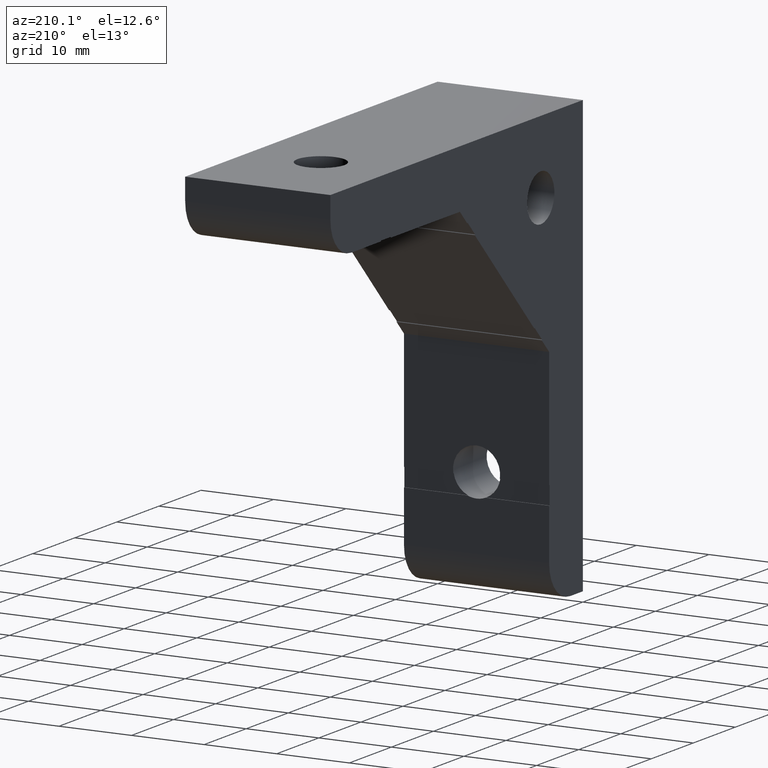
[diagram: clean part render]
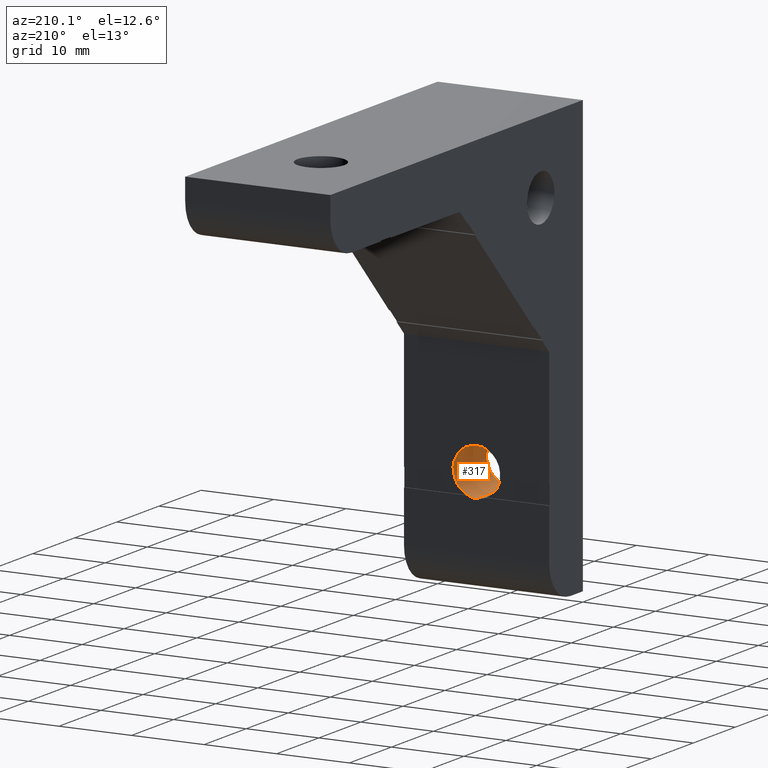
[diagram: same view with one face highlighted and labeled with its STEP entity id]
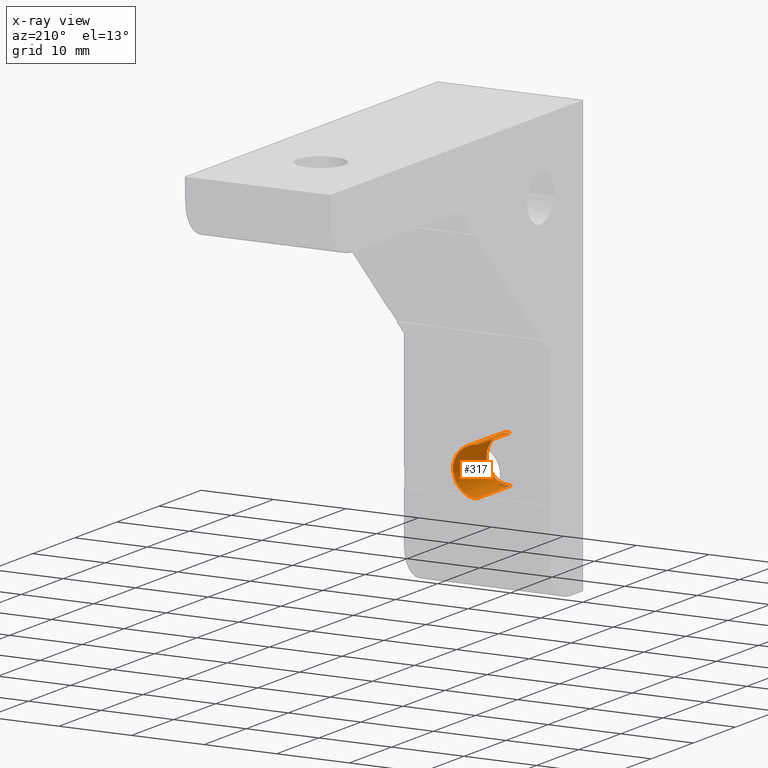
[diagram: x-ray of the same camera — body ghosted, the highlighted face saturated]
A machine part, auxiliary view. The second image highlights one B-rep face of the part: STEP entity #317.
The next image is the same camera in x-ray: the body ghosted, the highlighted face saturated — about 4% of this face is hidden behind the body in this view.
In plain terms, the highlighted cylindrical surface (edge-blend (fillet) strip) has radius 3.25 mm, axis along (-0, 1, 0).
Its self-contained STEP definition (entity closure, byte-faithful):
#2 = EDGE_CURVE ( 'NONE', #909, #1257, #820, .T. ) ;
#3 = EDGE_CURVE ( 'NONE', #907, #911, #822, .T. ) ;
#149 = CARTESIAN_POINT ( 'NONE',  ( 10.00000000000000000, 8.000000000000000000, -48.24999999999999300 ) ) ;
#155 = CARTESIAN_POINT ( 'NONE',  ( 10.00000000000000000, 0.0000000000000000000, -48.24999999999999300 ) ) ;
#167 = CARTESIAN_POINT ( 'NONE',  ( 10.00000000000000000, 0.0000000000000000000, -41.75000000000000000 ) ) ;
#169 = CARTESIAN_POINT ( 'NONE',  ( 11.24999999983503900, 7.899999999999999500, -48.00000000006872400 ) ) ;
#171 = CARTESIAN_POINT ( 'NONE',  ( 10.00000000000000000, 8.000000000000000000, -41.75000000000000000 ) ) ;
#179 = CARTESIAN_POINT ( 'NONE',  ( 13.21130814473605100, 8.000000000000000000, -45.49999999955189600 ) ) ;
#183 = CARTESIAN_POINT ( 'NONE',  ( 13.21130814473605100, 7.899999999999999500, -45.49999999955189600 ) ) ;
#213 = CARTESIAN_POINT ( 'NONE',  ( 10.00000000000000000, 0.0000000000000000000, -48.24999999999999300 ) ) ;
#214 = DIRECTION ( 'NONE',  ( -0.0000000000000000000, 1.000000000000000000, 0.0000000000000000000 ) ) ;
#256 = CARTESIAN_POINT ( 'NONE',  ( 11.24999999983503900, 8.000000000000000000, -48.00000000006872400 ) ) ;
#317 = ADVANCED_FACE ( 'NONE', ( #1292 ), #1294, .F. ) ;
#486 = CARTESIAN_POINT ( 'NONE',  ( 13.21130814480582500, 4.000000000000000000, -45.49999999910379200 ) ) ;
#487 = DIRECTION ( 'NONE',  ( -0.0000000000000000000, -1.000000000000000000, -0.0000000000000000000 ) ) ;
#525 = AXIS2_PLACEMENT_3D ( 'NONE', #858, #857, #856 ) ;
#555 = AXIS2_PLACEMENT_3D ( 'NONE', #1112, #1113, #1114 ) ;
#556 = AXIS2_PLACEMENT_3D ( 'NONE', #1115, #1116, #1117 ) ;
#557 = AXIS2_PLACEMENT_3D ( 'NONE', #1118, #1119, #1120 ) ;
#558 = AXIS2_PLACEMENT_3D ( 'NONE', #1121, #1122, #1123 ) ;
#569 = EDGE_CURVE ( 'NONE', #919, #923, #1392, .T. ) ;
#573 = EDGE_CURVE ( 'NONE', #895, #907, #1402, .T. ) ;
#574 = EDGE_CURVE ( 'NONE', #911, #919, #1403, .T. ) ;
#575 = EDGE_CURVE ( 'NONE', #923, #909, #1404, .T. ) ;
#576 = EDGE_CURVE ( 'NONE', #1257, #871, #1406, .T. ) ;
#702 = ORIENTED_EDGE ( 'NONE', *, *, #573, .T. ) ;
#703 = ORIENTED_EDGE ( 'NONE', *, *, #574, .T. ) ;
#704 = ORIENTED_EDGE ( 'NONE', *, *, #569, .T. ) ;
#705 = ORIENTED_EDGE ( 'NONE', *, *, #575, .T. ) ;
#706 = ORIENTED_EDGE ( 'NONE', *, *, #2, .T. ) ;
#707 = ORIENTED_EDGE ( 'NONE', *, *, #576, .T. ) ;
#734 = ORIENTED_EDGE ( 'NONE', *, *, #952, .F. ) ;
#746 = EDGE_LOOP ( 'NONE', ( #734, #702, #817, #703, #704, #705, #706, #707 ) ) ;
#817 = ORIENTED_EDGE ( 'NONE', *, *, #3, .T. ) ;
#820 = LINE ( 'NONE', #1269, #821 ) ;
#821 = VECTOR ( 'NONE', #1268, 1000.000000000000000 ) ;
#822 = LINE ( 'NONE', #1265, #823 ) ;
#823 = VECTOR ( 'NONE', #1263, 1000.000000000000000 ) ;
#856 = DIRECTION ( 'NONE',  ( 0.0000000000000000000, 0.0000000000000000000, 1.000000000000000000 ) ) ;
#857 = DIRECTION ( 'NONE',  ( -0.0000000000000000000, 1.000000000000000000, 0.0000000000000000000 ) ) ;
#858 = CARTESIAN_POINT ( 'NONE',  ( 10.00000000000000000, 0.0000000000000000000, -45.00000000000000000 ) ) ;
#871 = VERTEX_POINT ( 'NONE', #149 ) ;
#895 = VERTEX_POINT ( 'NONE', #155 ) ;
#907 = VERTEX_POINT ( 'NONE', #167 ) ;
#909 = VERTEX_POINT ( 'NONE', #169 ) ;
#911 = VERTEX_POINT ( 'NONE', #171 ) ;
#919 = VERTEX_POINT ( 'NONE', #179 ) ;
#923 = VERTEX_POINT ( 'NONE', #183 ) ;
#952 = EDGE_CURVE ( 'NONE', #895, #871, #1077, .T. ) ;
#1077 = LINE ( 'NONE', #213, #1078 ) ;
#1078 = VECTOR ( 'NONE', #214, 1000.000000000000000 ) ;
#1112 = CARTESIAN_POINT ( 'NONE',  ( 10.00000000000000000, 0.0000000000000000000, -45.00000000000000000 ) ) ;
#1113 = DIRECTION ( 'NONE',  ( 0.0000000000000000000, -1.000000000000000000, -0.0000000000000000000 ) ) ;
#1114 = DIRECTION ( 'NONE',  ( 0.0000000000000000000, 0.0000000000000000000, 1.000000000000000000 ) ) ;
#1115 = CARTESIAN_POINT ( 'NONE',  ( 10.00000000000000000, 8.000000000000000000, -45.00000000000000000 ) ) ;
#1116 = DIRECTION ( 'NONE',  ( -0.0000000000000000000, 1.000000000000000000, 0.0000000000000000000 ) ) ;
#1117 = DIRECTION ( 'NONE',  ( 0.0000000000000000000, 0.0000000000000000000, 1.000000000000000000 ) ) ;
#1118 = CARTESIAN_POINT ( 'NONE',  ( 10.00000000000000000, 7.899999999999999500, -45.00000000000000000 ) ) ;
#1119 = DIRECTION ( 'NONE',  ( -0.0000000000000000000, 1.000000000000000000, 0.0000000000000000000 ) ) ;
#1120 = DIRECTION ( 'NONE',  ( 0.0000000000000000000, 0.0000000000000000000, 1.000000000000000000 ) ) ;
#1121 = CARTESIAN_POINT ( 'NONE',  ( 10.00000000000000000, 8.000000000000000000, -45.00000000000000000 ) ) ;
#1122 = DIRECTION ( 'NONE',  ( -0.0000000000000000000, 1.000000000000000000, 0.0000000000000000000 ) ) ;
#1123 = DIRECTION ( 'NONE',  ( 0.0000000000000000000, 0.0000000000000000000, 1.000000000000000000 ) ) ;
#1257 = VERTEX_POINT ( 'NONE', #256 ) ;
#1263 = DIRECTION ( 'NONE',  ( -0.0000000000000000000, 1.000000000000000000, 0.0000000000000000000 ) ) ;
#1265 = CARTESIAN_POINT ( 'NONE',  ( 10.00000000000000000, 0.0000000000000000000, -41.75000000000000000 ) ) ;
#1268 = DIRECTION ( 'NONE',  ( 0.0000000000000000000, 1.000000000000000000, 0.0000000000000000000 ) ) ;
#1269 = CARTESIAN_POINT ( 'NONE',  ( 11.24999999967009300, 3.999999999999999100, -48.00000000013744700 ) ) ;
#1292 = FACE_OUTER_BOUND ( 'NONE', #746, .T. ) ;
#1294 = CYLINDRICAL_SURFACE ( 'NONE', #525, 3.249999999999996000 ) ;
#1392 = LINE ( 'NONE', #486, #1394 ) ;
#1394 = VECTOR ( 'NONE', #487, 1000.000000000000000 ) ;
#1402 = CIRCLE ( 'NONE', #555, 3.249999999999996000 ) ;
#1403 = CIRCLE ( 'NONE', #556, 3.249999999999996000 ) ;
#1404 = CIRCLE ( 'NONE', #557, 3.249999999999996000 ) ;
#1406 = CIRCLE ( 'NONE', #558, 3.249999999999996000 ) ;